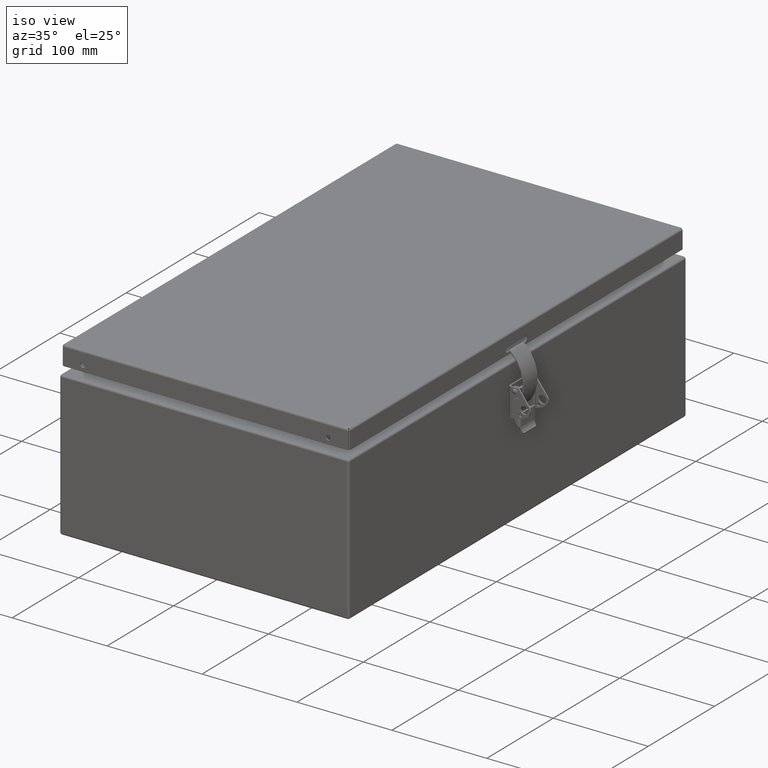
[diagram: clean part render]
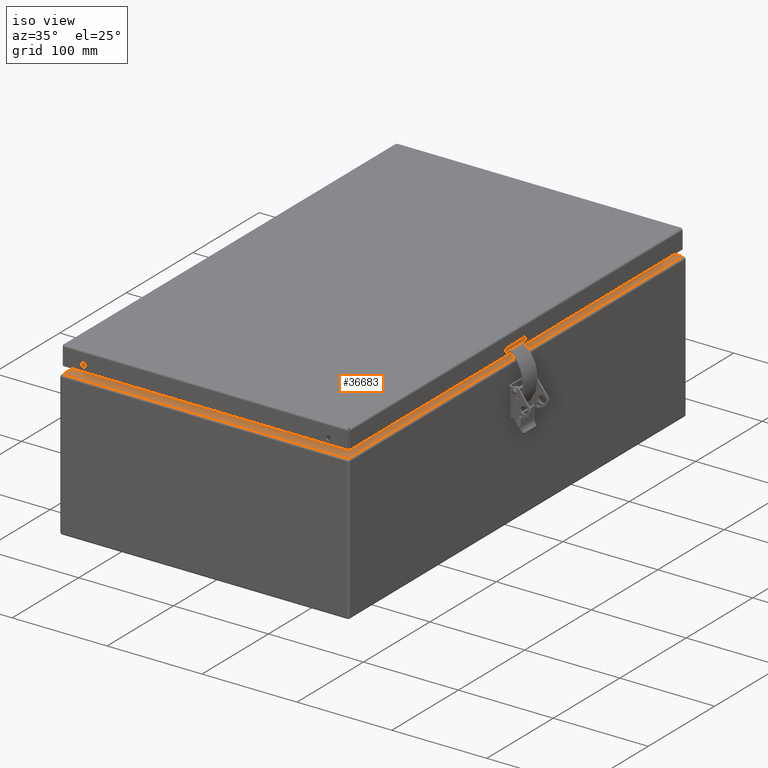
[diagram: same view with one face highlighted and labeled with its STEP entity id]
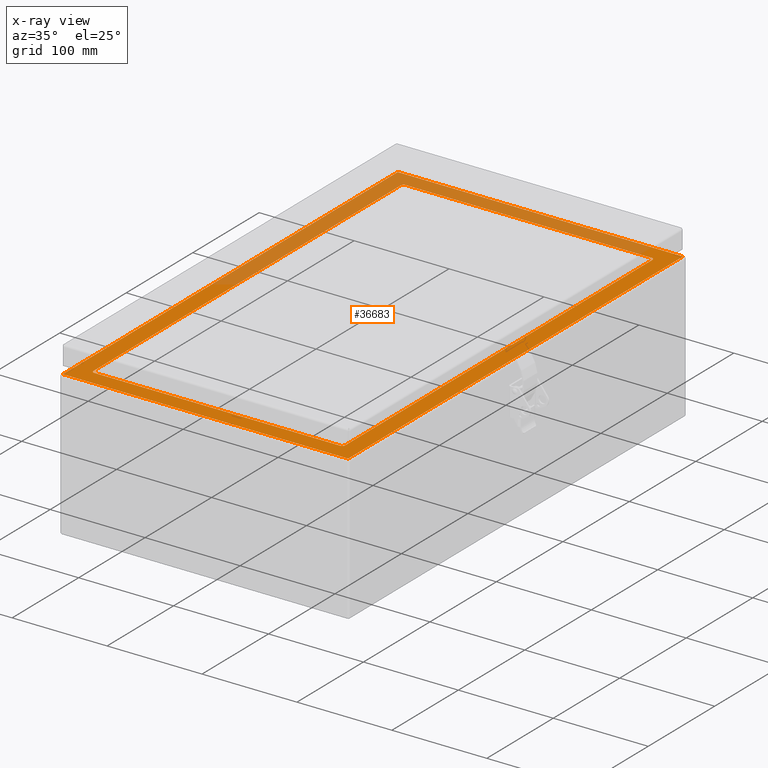
[diagram: x-ray of the same camera — body ghosted, the highlighted face saturated]
A machine part, iso view. The second image highlights one B-rep face of the part: STEP entity #36683.
The next image is the same camera in x-ray: the body ghosted, the highlighted face saturated — about 34% of this face is hidden behind the body in this view.
In plain terms, the highlighted planar face has unit normal (0, 0, 1).
Its self-contained STEP definition (entity closure, byte-faithful):
#661=FACE_BOUND('',#11025,.T.);
#3596=LINE('',#52457,#5798);
#3598=LINE('',#52465,#5800);
#3599=LINE('',#52466,#5801);
#3603=LINE('',#52487,#5805);
#3604=LINE('',#52488,#5806);
#3613=LINE('',#52518,#5815);
#3614=LINE('',#52519,#5816);
#3646=LINE('',#52670,#5848);
#3647=LINE('',#52671,#5849);
#3648=LINE('',#52672,#5850);
#3649=LINE('',#52673,#5851);
#5798=VECTOR('',#43260,0.393700787401575);
#5800=VECTOR('',#43268,0.393700787401575);
#5801=VECTOR('',#43269,0.393700787401575);
#5805=VECTOR('',#43293,0.393700787401575);
#5806=VECTOR('',#43294,0.393700787401575);
#5815=VECTOR('',#43325,0.393700787401575);
#5816=VECTOR('',#43326,0.393700787401575);
#5848=VECTOR('',#43492,0.393700787401575);
#5849=VECTOR('',#43493,0.393700787401575);
#5850=VECTOR('',#43494,0.393700787401575);
#5851=VECTOR('',#43495,0.393700787401575);
#8729=FACE_OUTER_BOUND('',#11024,.T.);
#11024=EDGE_LOOP('',(#24677,#24678,#24679,#24680,#24681,#24682,#24683));
#11025=EDGE_LOOP('',(#24684,#24685,#24686,#24687,#24688,#24689,#24690,#24691));
#13469=CIRCLE('',#39791,0.115);
#13472=CIRCLE('',#39796,0.115);
#13475=CIRCLE('',#39800,0.115);
#13478=CIRCLE('',#39804,0.115);
#14942=VERTEX_POINT('',#52436);
#14948=VERTEX_POINT('',#52456);
#14950=VERTEX_POINT('',#52462);
#14951=VERTEX_POINT('',#52464);
#14957=VERTEX_POINT('',#52484);
#14958=VERTEX_POINT('',#52486);
#14968=VERTEX_POINT('',#52517);
#15002=VERTEX_POINT('',#52611);
#15004=VERTEX_POINT('',#52615);
#15005=VERTEX_POINT('',#52622);
#15006=VERTEX_POINT('',#52624);
#15007=VERTEX_POINT('',#52628);
#15008=VERTEX_POINT('',#52630);
#15009=VERTEX_POINT('',#52634);
#15010=VERTEX_POINT('',#52636);
#18631=EDGE_CURVE('',#14942,#14948,#3596,.T.);
#18635=EDGE_CURVE('',#14950,#14951,#3598,.T.);
#18636=EDGE_CURVE('',#14951,#14942,#3599,.T.);
#18646=EDGE_CURVE('',#14957,#14958,#3603,.T.);
#18647=EDGE_CURVE('',#14958,#14950,#3604,.T.);
#18662=EDGE_CURVE('',#14948,#14968,#3613,.T.);
#18663=EDGE_CURVE('',#14957,#14968,#3614,.T.);
#18711=EDGE_CURVE('',#15004,#15002,#13469,.T.);
#18716=EDGE_CURVE('',#15006,#15005,#13472,.T.);
#18719=EDGE_CURVE('',#15008,#15007,#13475,.T.);
#18722=EDGE_CURVE('',#15010,#15009,#13478,.T.);
#18739=EDGE_CURVE('',#15005,#15004,#3646,.T.);
#18740=EDGE_CURVE('',#15009,#15006,#3647,.T.);
#18741=EDGE_CURVE('',#15007,#15010,#3648,.T.);
#18742=EDGE_CURVE('',#15002,#15008,#3649,.T.);
#24677=ORIENTED_EDGE('',*,*,#18635,.F.);
#24678=ORIENTED_EDGE('',*,*,#18647,.F.);
#24679=ORIENTED_EDGE('',*,*,#18646,.F.);
#24680=ORIENTED_EDGE('',*,*,#18663,.T.);
#24681=ORIENTED_EDGE('',*,*,#18662,.F.);
#24682=ORIENTED_EDGE('',*,*,#18631,.F.);
#24683=ORIENTED_EDGE('',*,*,#18636,.F.);
#24684=ORIENTED_EDGE('',*,*,#18711,.F.);
#24685=ORIENTED_EDGE('',*,*,#18739,.F.);
#24686=ORIENTED_EDGE('',*,*,#18716,.F.);
#24687=ORIENTED_EDGE('',*,*,#18740,.F.);
#24688=ORIENTED_EDGE('',*,*,#18722,.F.);
#24689=ORIENTED_EDGE('',*,*,#18741,.F.);
#24690=ORIENTED_EDGE('',*,*,#18719,.F.);
#24691=ORIENTED_EDGE('',*,*,#18742,.F.);
#35950=PLANE('',#39813);
#36683=ADVANCED_FACE('',(#8729,#661),#35950,.T.);
#39791=AXIS2_PLACEMENT_3D('',#52617,#43432,#43433);
#39796=AXIS2_PLACEMENT_3D('',#52626,#43444,#43445);
#39800=AXIS2_PLACEMENT_3D('',#52632,#43452,#43453);
#39804=AXIS2_PLACEMENT_3D('',#52638,#43460,#43461);
#39813=AXIS2_PLACEMENT_3D('',#52669,#43490,#43491);
#43260=DIRECTION('',(0.,1.,-7.18445231217455E-17));
#43268=DIRECTION('',(-1.,0.,0.));
#43269=DIRECTION('',(-1.,-7.20229298064943E-12,1.30148226346521E-14));
#43293=DIRECTION('',(1.8266685092781E-12,-1.,7.18435796182839E-17));
#43294=DIRECTION('',(0.,-1.,7.18429172594919E-17));
#43325=DIRECTION('',(1.,7.20229297792799E-12,-1.30148226346521E-14));
#43326=DIRECTION('',(-1.,5.37239577180745E-33,-5.88547582815379E-18));
#43432=DIRECTION('center_axis',(1.30148226346516E-14,7.18435796420577E-17,
1.));
#43433=DIRECTION('ref_axis',(0.707106781186517,-0.707106781186578,-9.15206825855227E-15));
#43444=DIRECTION('center_axis',(1.30148226346516E-14,7.18435796420577E-17,
1.));
#43445=DIRECTION('ref_axis',(-0.707106781186524,-0.707106781186571,9.25367042325161E-15));
#43452=DIRECTION('center_axis',(1.30148226346516E-14,7.18435796420577E-17,
1.));
#43453=DIRECTION('ref_axis',(0.707106781186517,0.707106781186578,-9.25367042325151E-15));
#43460=DIRECTION('center_axis',(1.30148226346516E-14,7.18435796420577E-17,
1.));
#43461=DIRECTION('ref_axis',(-0.707106781186524,0.707106781186571,9.15206825855237E-15));
#43490=DIRECTION('center_axis',(1.30148226346516E-14,7.18435796420577E-17,
1.));
#43491=DIRECTION('ref_axis',(1.,0.,-1.30148226346516E-14));
#43492=DIRECTION('',(1.,0.,0.));
#43493=DIRECTION('',(0.,-1.,7.18445231217455E-17));
#43494=DIRECTION('',(-1.,0.,4.02324045995523E-16));
#43495=DIRECTION('',(0.,1.,-7.18429172594919E-17));
#52436=CARTESIAN_POINT('',(-5.91600000000003,-9.91599999999998,6.00000000000015));
#52456=CARTESIAN_POINT('',(-5.91599999999939,9.91599999992085,6.00000000000015));
#52457=CARTESIAN_POINT('',(-5.91600000000003,-44.1322501935339,6.));
#52462=CARTESIAN_POINT('',(5.9159999999994,-9.91599999999399,6.));
#52464=CARTESIAN_POINT('',(-5.83200000000003,-9.91600000000003,6.));
#52465=CARTESIAN_POINT('',(46.1330576562749,-9.91600000000003,6.));
#52466=CARTESIAN_POINT('',(5.32255175834019,-9.91599999999827,6.00000000000001));
#52484=CARTESIAN_POINT('',(5.91599999996533,9.91599999999984,6.));
#52486=CARTESIAN_POINT('',(5.91600000000003,9.8352023937484,6.));
#52487=CARTESIAN_POINT('',(5.91599999999174,-4.53908719137539,6.));
#52488=CARTESIAN_POINT('',(5.91600000000003,44.3421235471156,6.));
#52517=CARTESIAN_POINT('',(-5.83200000000003,9.91600000000003,6.));
#52518=CARTESIAN_POINT('',(5.32255175826937,9.91600000000179,6.00000000000001));
#52519=CARTESIAN_POINT('',(-1.99982190693885E-15,9.91600000000003,6.));
#52611=CARTESIAN_POINT('',(5.21785826771653,-9.10285826771653,6.));
#52615=CARTESIAN_POINT('',(5.10285826771653,-9.21785826771653,6.));
#52617=CARTESIAN_POINT('Origin',(5.10285826771656,-9.10285826771656,6.00000000000001));
#52622=CARTESIAN_POINT('',(-5.10285826771653,-9.21785826771653,6.));
#52624=CARTESIAN_POINT('',(-5.21785826771654,-9.10285826771653,6.));
#52626=CARTESIAN_POINT('Origin',(-5.10285826771657,-9.10285826771656,6.00000000000014));
#52628=CARTESIAN_POINT('',(5.10285826771653,9.21785826771653,6.));
#52630=CARTESIAN_POINT('',(5.21785826771653,9.10285826771653,6.));
#52632=CARTESIAN_POINT('Origin',(5.10285826771656,9.10285826771656,6.00000000000001));
#52634=CARTESIAN_POINT('',(-5.21785826771654,9.10285826771653,6.));
#52636=CARTESIAN_POINT('',(-5.10285826771653,9.21785826771653,6.));
#52638=CARTESIAN_POINT('Origin',(-5.10285826771657,9.10285826771656,6.00000000000014));
#52669=CARTESIAN_POINT('Origin',(5.5669291338583,0.,6.));
#52670=CARTESIAN_POINT('',(-46.1330576562749,-9.21785826771656,6.00000000000001));
#52671=CARTESIAN_POINT('',(-5.21785826771657,44.1322501935339,6.00000000000001));
#52672=CARTESIAN_POINT('',(46.0301393650682,9.21785826771656,5.99999999999999));
#52673=CARTESIAN_POINT('',(5.21785826771657,-44.0305881140448,6.00000000000001));